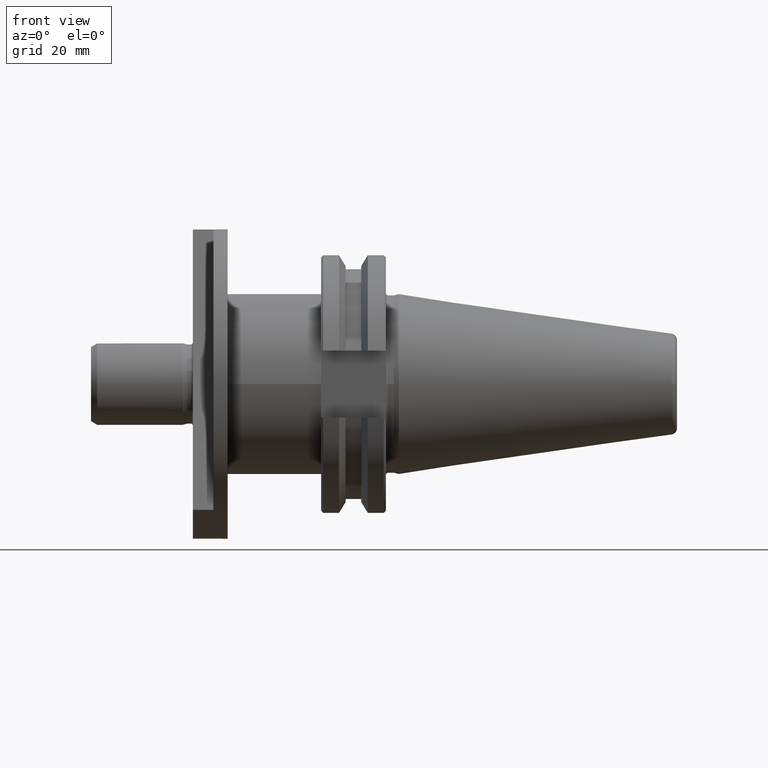
[diagram: clean part render]
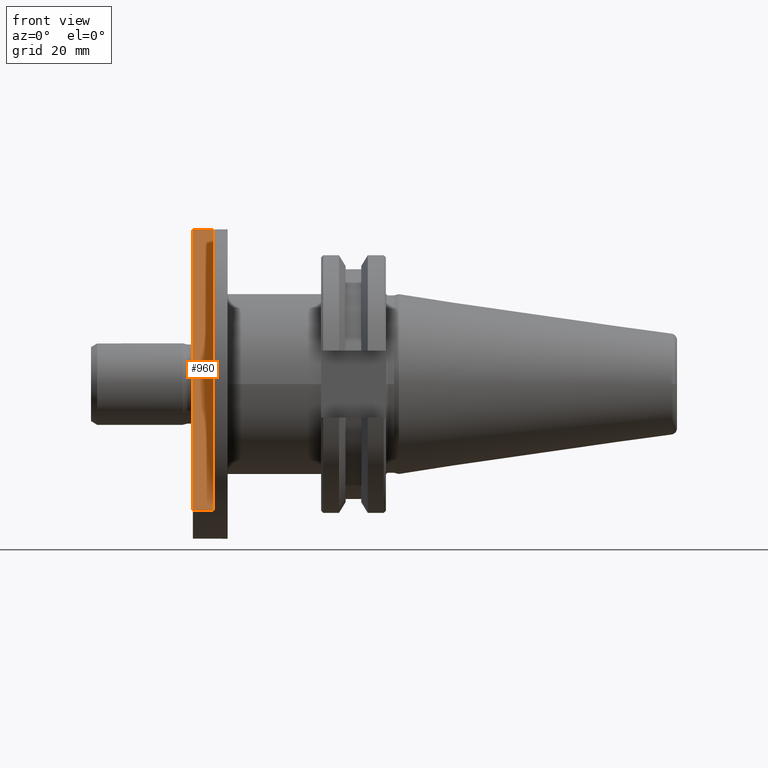
[diagram: same view with one face highlighted and labeled with its STEP entity id]
A machine part, front view. The second image highlights one B-rep face of the part: STEP entity #960.
In plain terms, the highlighted planar face has unit normal (0, -0.942, 0.3356).
Its self-contained STEP definition (entity closure, byte-faithful):
#173=FACE_OUTER_BOUND('',#239,.T.);
#239=EDGE_LOOP('',(#853,#854,#855,#856));
#312=LINE('',#1810,#372);
#313=LINE('',#1814,#373);
#318=LINE('',#1829,#378);
#319=LINE('',#1833,#379);
#372=VECTOR('',#1364,5.);
#373=VECTOR('',#1367,5.);
#378=VECTOR('',#1384,73.0410843293024);
#379=VECTOR('',#1389,73.0410843293024);
#457=VERTEX_POINT('',#1807);
#458=VERTEX_POINT('',#1809);
#459=VERTEX_POINT('',#1811);
#460=VERTEX_POINT('',#1813);
#585=EDGE_CURVE('',#457,#458,#312,.T.);
#587=EDGE_CURVE('',#459,#460,#313,.T.);
#595=EDGE_CURVE('',#457,#460,#318,.T.);
#597=EDGE_CURVE('',#459,#458,#319,.T.);
#853=ORIENTED_EDGE('',*,*,#587,.F.);
#854=ORIENTED_EDGE('',*,*,#597,.T.);
#855=ORIENTED_EDGE('',*,*,#585,.F.);
#856=ORIENTED_EDGE('',*,*,#595,.T.);
#908=PLANE('',#1106);
#960=ADVANCED_FACE('',(#173),#908,.T.);
#1106=AXIS2_PLACEMENT_3D('',#1832,#1387,#1388);
#1364=DIRECTION('',(1.,0.,0.));
#1367=DIRECTION('',(-1.,0.,0.));
#1384=DIRECTION('',(0.,-0.335646513186189,-0.941988013822869));
#1387=DIRECTION('center_axis',(0.,-0.941988013822869,0.335646513186189));
#1388=DIRECTION('ref_axis',(0.,0.335646513186189,0.941988013822869));
#1389=DIRECTION('',(0.,0.335646513186189,0.941988013822869));
#1807=CARTESIAN_POINT('',(-8.499999999998,2.367118492095,37.92620136587));
#1809=CARTESIAN_POINT('',(-3.499999999998,2.367118492095,37.92620136587));
#1810=CARTESIAN_POINT('',(-8.499999999998,2.367118492095,37.92620136587));
#1811=CARTESIAN_POINT('',(-3.499999999998,-22.14886678237,-30.87762458896));
#1813=CARTESIAN_POINT('',(-8.499999999998,-22.14886678237,-30.87762458896));
#1814=CARTESIAN_POINT('',(-3.499999999998,-22.14886678237,-30.87762458896));
#1829=CARTESIAN_POINT('',(-8.499999999998,2.367118492095,37.92620136587));
#1832=CARTESIAN_POINT('Origin',(3.500000000002,-9.89087414514,3.524288388455));
#1833=CARTESIAN_POINT('',(-3.499999999998,-22.14886678237,-30.87762458896));